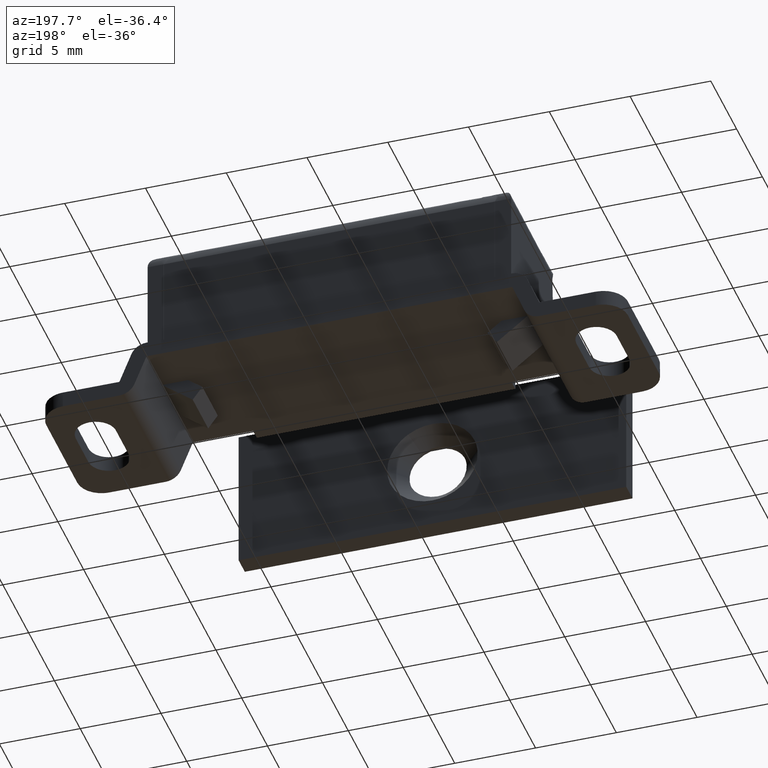
[diagram: clean part render]
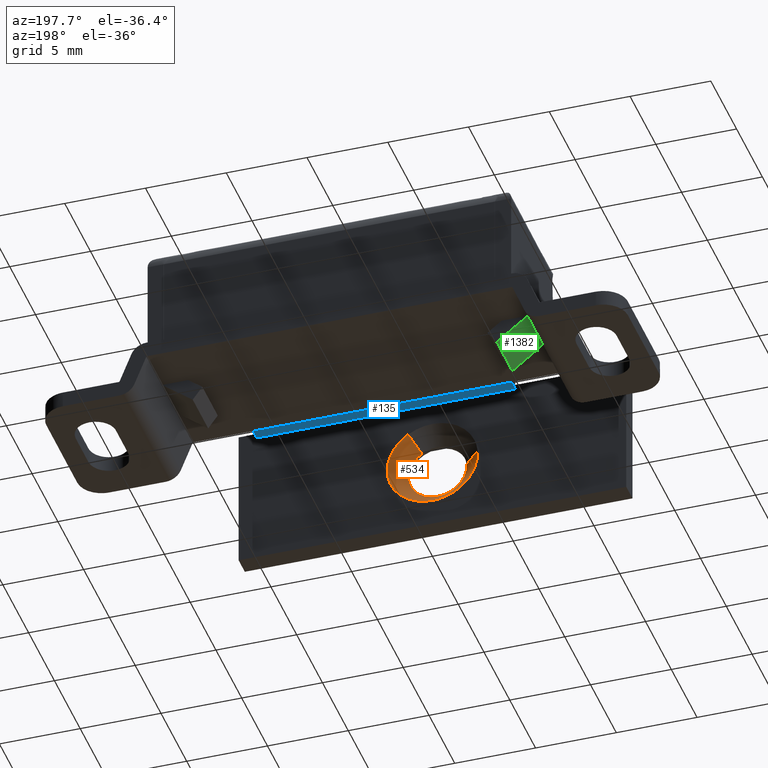
[diagram: same view with three faces highlighted in distinct colors, each labeled with its STEP entity id]
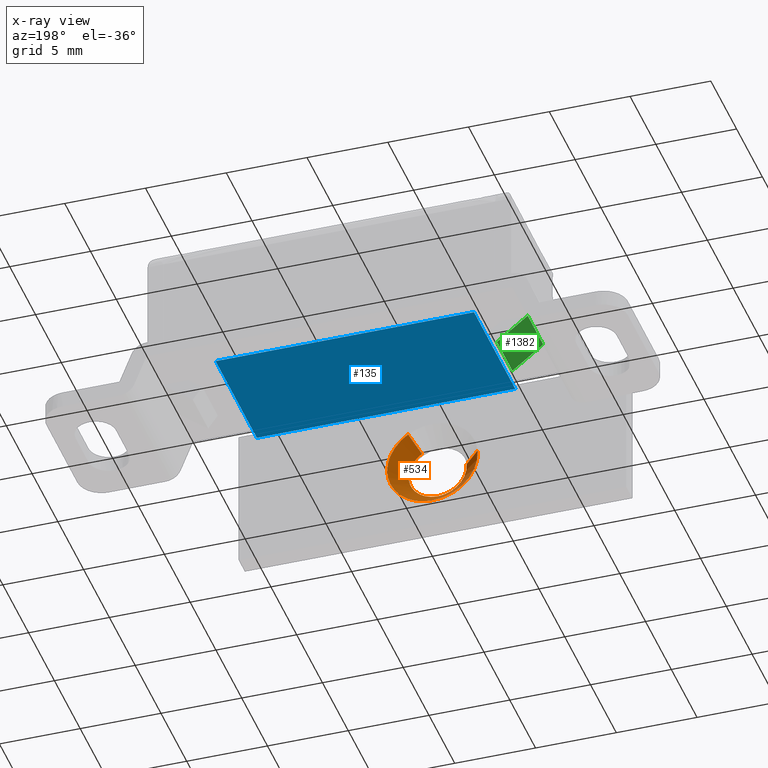
[diagram: x-ray of the same camera — body ghosted, the three highlighted faces saturated]
A machine part, auxiliary view with three faces highlighted in distinct colors.
The next image is the same camera in x-ray (body ghosted, the three faces saturated) — at least one of them is partly hidden behind the body in this view.
Their STEP definitions:

[orange] entity #534 — the highlighted face is a freeform B-spline surface patch.
#398=CARTESIAN_POINT('',(0.954685158367010,-12.025000000000002,7.746396086734305));
#399=CARTESIAN_POINT('',(1.853145120805182,-12.025000000000002,7.173187964145168));
#400=CARTESIAN_POINT('',(1.769528267376299,-12.025000000000000,6.110735105083075));
#401=CARTESIAN_POINT('',(1.630263372459373,-12.025000000000002,4.341206837706776));
#402=CARTESIAN_POINT('',(-0.139264894916926,-12.025000000000000,4.480471732623701));
#403=CARTESIAN_POINT('',(-1.908793162293224,-12.025000000000002,4.619736627540626));
#404=CARTESIAN_POINT('',(-1.769528267376299,-12.025000000000000,6.389264894916925));
#405=CARTESIAN_POINT('',(1.519764648231430,-10.974374999999995,8.632115038072467));
#406=CARTESIAN_POINT('',(2.950024327873325,-10.974374999999998,7.719624220387434));
#407=CARTESIAN_POINT('',(2.816914541129670,-10.974375000000000,6.028304017634007));
#408=CARTESIAN_POINT('',(2.595218558763676,-10.974374999999998,3.211389476504337));
#409=CARTESIAN_POINT('',(-0.221695982365994,-10.974375000000000,3.433085458870330));
#410=CARTESIAN_POINT('',(-3.038610523495664,-10.974374999999998,3.654781441236323));
#411=CARTESIAN_POINT('',(-2.816914541129670,-10.974375000000000,6.471695982365993));
#419=(BOUNDED_SURFACE()B_SPLINE_SURFACE(2,1,((#398,#405),(#399,#406),(#400,#407),(#401,#408),(#402,#409),(#403,#410),(#404,#411)),.UNSPECIFIED.,.F.,.F.,.U.)B_SPLINE_SURFACE_WITH_KNOTS((3,2,2,3),(2,2),(0.0,3.183521176330897,7.865169965052806,12.546818753774710),(0.0,1.0),.UNSPECIFIED.)GEOMETRIC_REPRESENTATION_ITEM()RATIONAL_B_SPLINE_SURFACE(((0.872532871172386,0.872532871172386),(0.800832611206852,0.800832611206852),(1.0,1.0),(0.707106781186548,0.707106781186548),(1.0,1.0),(0.707106781186548,0.707106781186548),(1.0,1.0)))REPRESENTATION_ITEM('')SURFACE());
#420=CARTESIAN_POINT('',(1.787417147453704,-12.0,6.037538377610298));
#421=VERTEX_POINT('',#420);
#422=CARTESIAN_POINT('',(0.968131428210750,-11.999999999999529,7.767472087951644));
#423=VERTEX_POINT('',#422);
#424=CARTESIAN_POINT('',(1.787417147453704,-12.000000000000002,6.037538377610298));
#425=CARTESIAN_POINT('',(1.800000000000000,-11.999999999999996,6.143396584618945));
#426=CARTESIAN_POINT('',(1.800000000000000,-12.0,6.250000000000000));
#427=CARTESIAN_POINT('',(1.800000000000000,-11.999999999999998,7.236748580815180));
#428=CARTESIAN_POINT('',(0.968131428210750,-11.999999999999522,7.767472087951644));
#436=(BOUNDED_CURVE()B_SPLINE_CURVE(2,(#424,#425,#426,#427,#428),.UNSPECIFIED.,.F.,.U.)B_SPLINE_CURVE_WITH_KNOTS((3,2,3),(0.229562473514219,0.250000000000000,0.407950112626096),.UNSPECIFIED.)CURVE()GEOMETRIC_REPRESENTATION_ITEM()RATIONAL_B_SPLINE_CURVE((0.956026754185092,0.976055948331978,1.0,0.814949932403982,0.863729296954025))REPRESENTATION_ITEM(''));
#437=EDGE_CURVE('',#421,#423,#436,.T.);
#438=ORIENTED_EDGE('',*,*,#437,.T.);
#439=CARTESIAN_POINT('',(1.505982221703581,-10.999999999996700,8.610512136789648));
#440=VERTEX_POINT('',#439);
#441=CARTESIAN_POINT('',(0.968131428210750,-11.999999999999529,7.767472087951644));
#442=CARTESIAN_POINT('',(1.505982221703581,-10.999999999996700,8.610512136789648));
#443=QUASI_UNIFORM_CURVE('',1,(#441,#442),.UNSPECIFIED.,.F.,.U.);
#444=EDGE_CURVE('',#423,#440,#443,.T.);
#445=ORIENTED_EDGE('',*,*,#444,.T.);
#446=CARTESIAN_POINT('',(0.0,-11.0,3.450000000000000));
#447=VERTEX_POINT('',#446);
#448=CARTESIAN_POINT('',(0.0,-11.0,3.450000000000000));
#449=CARTESIAN_POINT('',(2.800000000000000,-11.0,3.450000000000001));
#450=CARTESIAN_POINT('',(2.800000000000000,-11.0,6.250000000000000));
#451=CARTESIAN_POINT('',(2.800000000000000,-11.000000000000002,7.784942236760302));
#452=CARTESIAN_POINT('',(1.505982221703581,-10.999999999996700,8.610512136789648));
#460=(BOUNDED_CURVE()B_SPLINE_CURVE(2,(#448,#449,#450,#451,#452),.UNSPECIFIED.,.F.,.U.)B_SPLINE_CURVE_WITH_KNOTS((3,2,3),(0.0,0.250000000000000,0.407950112620786),.UNSPECIFIED.)CURVE()GEOMETRIC_REPRESENTATION_ITEM()RATIONAL_B_SPLINE_CURVE((1.0,0.707106781186547,1.0,0.814949932410202,0.863729296950746))REPRESENTATION_ITEM(''));
#461=EDGE_CURVE('',#447,#440,#460,.T.);
#462=ORIENTED_EDGE('',*,*,#461,.F.);
#463=CARTESIAN_POINT('',(-2.791368534453637,-10.999999999997810,6.469685468054666));
#464=VERTEX_POINT('',#463);
#465=CARTESIAN_POINT('',(-2.791368534453637,-10.999999999997817,6.469685468054666));
#466=CARTESIAN_POINT('',(-2.799999999999999,-11.000000000000004,6.360012299638080));
#467=CARTESIAN_POINT('',(-2.800000000000000,-11.0,6.250000000000000));
#468=CARTESIAN_POINT('',(-2.800000000000000,-11.0,3.450000000000001));
#469=CARTESIAN_POINT('',(0.0,-11.0,3.450000000000000));
#477=(BOUNDED_CURVE()B_SPLINE_CURVE(2,(#465,#466,#467,#468,#469),.UNSPECIFIED.,.F.,.U.)B_SPLINE_CURVE_WITH_KNOTS((3,2,3),(0.736331300630737,0.750000000000000,1.0),.UNSPECIFIED.)CURVE()GEOMETRIC_REPRESENTATION_ITEM()RATIONAL_B_SPLINE_CURVE((0.969723356167579,0.983986122578972,1.0,0.707106781186547,1.0))REPRESENTATION_ITEM(''));
#478=EDGE_CURVE('',#464,#447,#477,.T.);
#479=ORIENTED_EDGE('',*,*,#478,.F.);
#480=CARTESIAN_POINT('',(-1.794451200719894,-11.999999999999330,6.391226372315334));
#481=VERTEX_POINT('',#480);
#482=CARTESIAN_POINT('',(-1.794451200719894,-11.999999999999330,6.391226372315334));
#483=CARTESIAN_POINT('',(-2.791368534453637,-10.999999999997810,6.469685468054666));
#484=QUASI_UNIFORM_CURVE('',1,(#482,#483),.UNSPECIFIED.,.F.,.U.);
#485=EDGE_CURVE('',#481,#464,#484,.T.);
#486=ORIENTED_EDGE('',*,*,#485,.F.);
#487=CARTESIAN_POINT('',(-1.796642637155494,-12.0,6.359887371225952));
#488=VERTEX_POINT('',#487);
#489=CARTESIAN_POINT('',(-1.794451200719894,-11.999999999999332,6.391226372315334));
#490=CARTESIAN_POINT('',(-1.795683664594064,-12.000000000000005,6.375566433992780));
#491=CARTESIAN_POINT('',(-1.796642637155495,-12.000000000000004,6.359887371225952));
#499=(BOUNDED_CURVE()B_SPLINE_CURVE(2,(#489,#490,#491),.UNSPECIFIED.,.F.,.U.)B_SPLINE_CURVE_WITH_KNOTS((3,3),(0.736331300631781,0.739332962229827),.UNSPECIFIED.)CURVE()GEOMETRIC_REPRESENTATION_ITEM()RATIONAL_B_SPLINE_CURVE((0.969723356169758,0.972855475551625,0.976072041647180))REPRESENTATION_ITEM(''));
#500=EDGE_CURVE('',#481,#488,#499,.T.);
#501=ORIENTED_EDGE('',*,*,#500,.T.);
#502=CARTESIAN_POINT('',(0.0,-12.0,4.450000000000001));
#503=VERTEX_POINT('',#502);
#504=CARTESIAN_POINT('',(-1.796642637155494,-12.0,6.359887371225952));
#505=CARTESIAN_POINT('',(-1.799999999999999,-12.000000000000004,6.304994974000845));
#506=CARTESIAN_POINT('',(-1.800000000000000,-12.0,6.250000000000000));
#507=CARTESIAN_POINT('',(-1.800000000000001,-12.0,4.450000000000001));
#508=CARTESIAN_POINT('',(0.0,-12.0,4.450000000000001));
#516=(BOUNDED_CURVE()B_SPLINE_CURVE(2,(#504,#505,#506,#507,#508),.UNSPECIFIED.,.F.,.U.)B_SPLINE_CURVE_WITH_KNOTS((3,2,3),(0.739332962229827,0.750000000000000,1.0),.UNSPECIFIED.)CURVE()GEOMETRIC_REPRESENTATION_ITEM()RATIONAL_B_SPLINE_CURVE((0.976072041647182,0.987502787889158,1.0,0.707106781186547,1.0))REPRESENTATION_ITEM(''));
#517=EDGE_CURVE('',#488,#503,#516,.T.);
#518=ORIENTED_EDGE('',*,*,#517,.T.);
#519=CARTESIAN_POINT('',(0.0,-12.0,4.450000000000001));
#520=CARTESIAN_POINT('',(1.598714146698884,-12.000000000000002,4.450000000000000));
#521=CARTESIAN_POINT('',(1.787417147453704,-12.000000000000004,6.037538377610298));
#529=(BOUNDED_CURVE()B_SPLINE_CURVE(2,(#519,#520,#521),.UNSPECIFIED.,.F.,.U.)B_SPLINE_CURVE_WITH_KNOTS((3,3),(0.0,0.229562473514219),.UNSPECIFIED.)CURVE()GEOMETRIC_REPRESENTATION_ITEM()RATIONAL_B_SPLINE_CURVE((1.0,0.731050832854570,0.956026754185092))REPRESENTATION_ITEM(''));
#530=EDGE_CURVE('',#503,#421,#529,.T.);
#531=ORIENTED_EDGE('',*,*,#530,.T.);
#532=EDGE_LOOP('',(#438,#445,#462,#479,#486,#501,#518,#531));
#533=FACE_OUTER_BOUND('',#532,.T.);
#534=ADVANCED_FACE('',(#533),#419,.F.);

[blue] entity #135 — the highlighted face is a freeform B-spline surface patch.
#49=CARTESIAN_POINT('',(-8.0,-11.0,7.500000000000000));
#50=VERTEX_POINT('',#49);
#65=CARTESIAN_POINT('',(-8.0,-3.000000000000115,7.500000000000000));
#66=VERTEX_POINT('',#65);
#72=CARTESIAN_POINT('',(-8.0,-3.000000000000115,7.500000000000000));
#73=CARTESIAN_POINT('',(-8.0,-11.0,7.500000000000000));
#74=QUASI_UNIFORM_CURVE('',1,(#72,#73),.UNSPECIFIED.,.F.,.U.);
#75=EDGE_CURVE('',#66,#50,#74,.T.);
#85=CARTESIAN_POINT('',(8.0,-11.0,7.500000000000000));
#86=VERTEX_POINT('',#85);
#94=CARTESIAN_POINT('',(8.0,-3.000000000000115,7.500000000000000));
#95=VERTEX_POINT('',#94);
#96=CARTESIAN_POINT('',(8.0,-3.000000000000115,7.500000000000000));
#97=CARTESIAN_POINT('',(8.0,-11.0,7.500000000000000));
#98=QUASI_UNIFORM_CURVE('',1,(#96,#97),.UNSPECIFIED.,.F.,.U.);
#99=EDGE_CURVE('',#95,#86,#98,.T.);
#116=CARTESIAN_POINT('',(8.799199968988896,-11.399599984494440,7.500000000000000));
#117=CARTESIAN_POINT('',(-8.799200398142338,-11.399599984494440,7.500000000000000));
#118=CARTESIAN_POINT('',(8.799199968988896,-2.600399800928952,7.500000000000000));
#119=CARTESIAN_POINT('',(-8.799200398142338,-2.600399800928952,7.500000000000000));
#120=B_SPLINE_SURFACE_WITH_KNOTS('',1,1,((#116,#118),(#117,#119)),.UNSPECIFIED.,.F.,.F.,.U.,(2,2),(2,2),(0.0,17.598400367131230),(0.0,8.799200183565491),.UNSPECIFIED.);
#121=ORIENTED_EDGE('',*,*,#75,.F.);
#122=CARTESIAN_POINT('',(8.0,-3.000000000000115,7.500000000000000));
#123=CARTESIAN_POINT('',(-8.0,-3.000000000000115,7.500000000000000));
#124=QUASI_UNIFORM_CURVE('',1,(#122,#123),.UNSPECIFIED.,.F.,.U.);
#125=EDGE_CURVE('',#95,#66,#124,.T.);
#126=ORIENTED_EDGE('',*,*,#125,.F.);
#127=ORIENTED_EDGE('',*,*,#99,.T.);
#128=CARTESIAN_POINT('',(8.0,-11.0,7.500000000000000));
#129=CARTESIAN_POINT('',(-8.0,-11.0,7.500000000000000));
#130=QUASI_UNIFORM_CURVE('',1,(#128,#129),.UNSPECIFIED.,.F.,.U.);
#131=EDGE_CURVE('',#86,#50,#130,.T.);
#132=ORIENTED_EDGE('',*,*,#131,.T.);
#133=EDGE_LOOP('',(#121,#126,#127,#132));
#134=FACE_OUTER_BOUND('',#133,.T.);
#135=ADVANCED_FACE('',(#134),#120,.T.);

[green] entity #1382 — the highlighted face is a freeform B-spline surface patch.
#1245=CARTESIAN_POINT('',(-11.322963000000000,-6.0,2.499999999999901));
#1246=VERTEX_POINT('',#1245);
#1252=CARTESIAN_POINT('',(-9.416767000000000,-6.0,1.0));
#1253=VERTEX_POINT('',#1252);
#1254=CARTESIAN_POINT('',(-11.322963000000000,-6.0,2.499999999999901));
#1255=CARTESIAN_POINT('',(-9.416767000000000,-6.0,1.0));
#1256=QUASI_UNIFORM_CURVE('',1,(#1254,#1255),.UNSPECIFIED.,.F.,.U.);
#1257=EDGE_CURVE('',#1246,#1253,#1256,.T.);
#1295=CARTESIAN_POINT('',(-9.416767000000000,-3.0,1.0));
#1296=VERTEX_POINT('',#1295);
#1302=CARTESIAN_POINT('',(-11.322963000000000,-3.0,2.499999999999901));
#1303=VERTEX_POINT('',#1302);
#1304=CARTESIAN_POINT('',(-11.322963000000000,-3.0,2.499999999999901));
#1305=CARTESIAN_POINT('',(-9.416767000000000,-3.0,1.0));
#1306=QUASI_UNIFORM_CURVE('',1,(#1304,#1305),.UNSPECIFIED.,.F.,.U.);
#1307=EDGE_CURVE('',#1303,#1296,#1306,.T.);
#1357=CARTESIAN_POINT('',(-9.416767000000000,-3.0,1.0));
#1358=CARTESIAN_POINT('',(-9.416767000000000,-6.0,1.0));
#1359=QUASI_UNIFORM_CURVE('',1,(#1357,#1358),.UNSPECIFIED.,.F.,.U.);
#1360=EDGE_CURVE('',#1296,#1253,#1359,.T.);
#1367=CARTESIAN_POINT('',(-9.321552515473613,-6.149849994185419,0.925075161688392));
#1368=CARTESIAN_POINT('',(-11.418178997159769,-6.149849994185419,2.574922880988069));
#1369=CARTESIAN_POINT('',(-9.321552515473613,-2.850149925348311,0.925075161688392));
#1370=CARTESIAN_POINT('',(-11.418178997159769,-2.850149925348311,2.574922880988069));
#1371=B_SPLINE_SURFACE_WITH_KNOTS('',1,1,((#1367,#1369),(#1368,#1370)),.UNSPECIFIED.,.F.,.F.,.U.,(2,2),(2,2),(0.0,2.667928053862401),(0.0,3.299700068837108),.UNSPECIFIED.);
#1372=ORIENTED_EDGE('',*,*,#1257,.F.);
#1373=CARTESIAN_POINT('',(-11.322963000000000,-3.0,2.499999999999901));
#1374=CARTESIAN_POINT('',(-11.322963000000000,-6.0,2.499999999999901));
#1375=QUASI_UNIFORM_CURVE('',1,(#1373,#1374),.UNSPECIFIED.,.F.,.U.);
#1376=EDGE_CURVE('',#1303,#1246,#1375,.T.);
#1377=ORIENTED_EDGE('',*,*,#1376,.F.);
#1378=ORIENTED_EDGE('',*,*,#1307,.T.);
#1379=ORIENTED_EDGE('',*,*,#1360,.T.);
#1380=EDGE_LOOP('',(#1372,#1377,#1378,#1379));
#1381=FACE_OUTER_BOUND('',#1380,.T.);
#1382=ADVANCED_FACE('',(#1381),#1371,.T.);